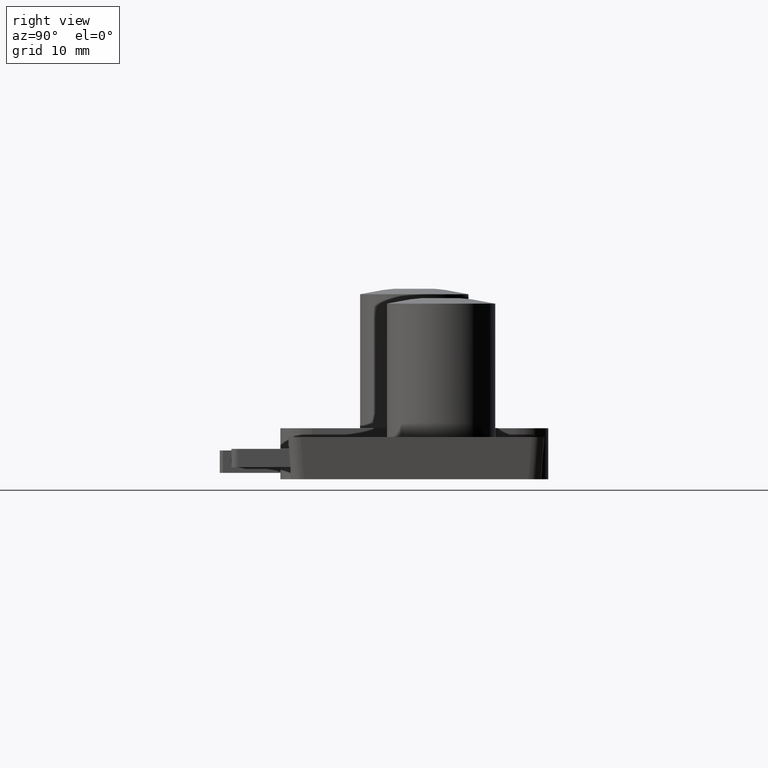
[diagram: clean part render]
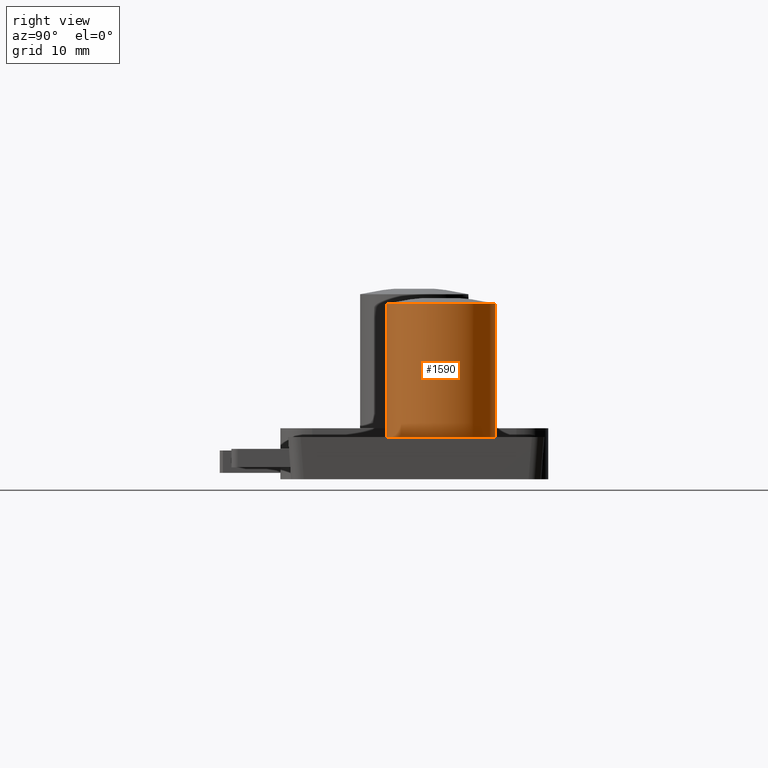
[diagram: same view with one face highlighted and labeled with its STEP entity id]
A machine part, right view. The second image highlights one B-rep face of the part: STEP entity #1590.
In plain terms, the highlighted cylindrical surface (bore or boss wall) has radius 8.5 mm, axis along (0, 0, 1).
Its self-contained STEP definition (entity closure, byte-faithful):
#52=CYLINDRICAL_SURFACE('',#1752,8.5);
#98=FACE_BOUND('',#327,.T.);
#198=FACE_OUTER_BOUND('',#326,.T.);
#326=EDGE_LOOP('',(#1431));
#327=EDGE_LOOP('',(#1432));
#655=CIRCLE('',#1723,8.5);
#660=CIRCLE('',#1740,8.5);
#795=VERTEX_POINT('',#2665);
#806=VERTEX_POINT('',#2703);
#992=EDGE_CURVE('',#795,#795,#655,.T.);
#1010=EDGE_CURVE('',#806,#806,#660,.T.);
#1431=ORIENTED_EDGE('',*,*,#1010,.F.);
#1432=ORIENTED_EDGE('',*,*,#992,.F.);
#1590=ADVANCED_FACE('',(#198,#98),#52,.T.);
#1723=AXIS2_PLACEMENT_3D('',#2666,#2128,#2129);
#1740=AXIS2_PLACEMENT_3D('',#2704,#2172,#2173);
#1752=AXIS2_PLACEMENT_3D('',#2732,#2204,#2205);
#2128=DIRECTION('center_axis',(0.,0.,-1.));
#2129=DIRECTION('ref_axis',(-1.,-1.05291673666254E-16,0.));
#2172=DIRECTION('center_axis',(0.,0.,1.));
#2173=DIRECTION('ref_axis',(-1.,-1.05291673666254E-16,0.));
#2204=DIRECTION('center_axis',(0.,0.,1.));
#2205=DIRECTION('ref_axis',(-1.,-1.05291673666254E-16,0.));
#2665=CARTESIAN_POINT('',(28.1,23.5,6.6));
#2666=CARTESIAN_POINT('Origin',(19.6,23.5,6.6));
#2703=CARTESIAN_POINT('',(19.6,32.,27.5));
#2704=CARTESIAN_POINT('Origin',(19.6,23.5,27.5));
#2732=CARTESIAN_POINT('Origin',(19.6,23.5,6.6));